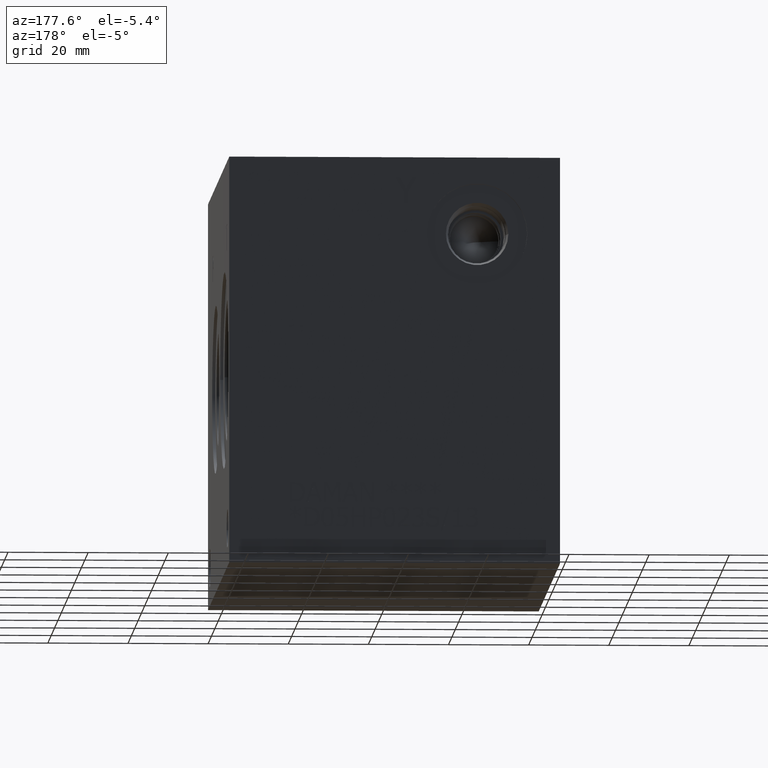
[diagram: clean part render]
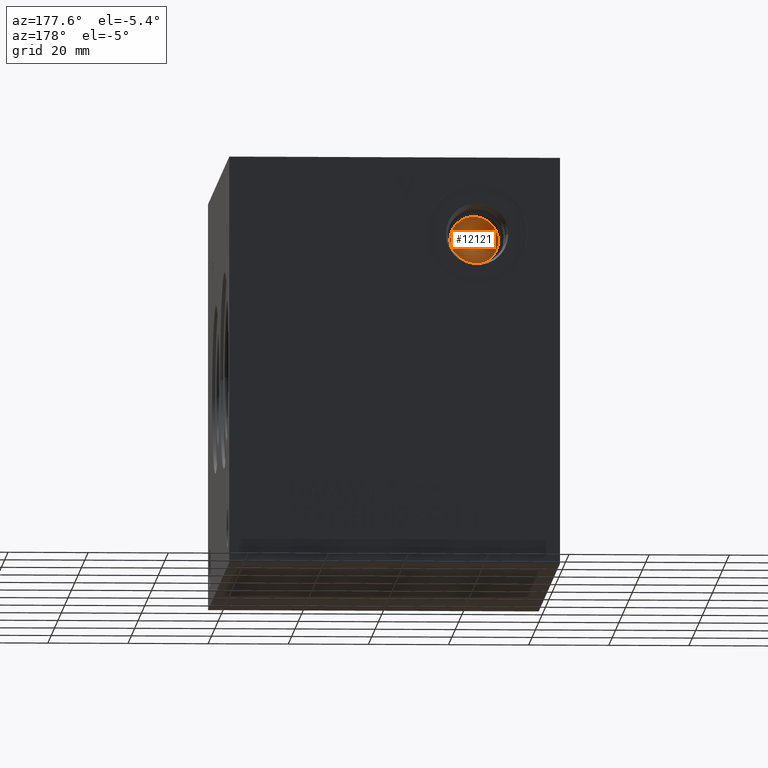
[diagram: same view with one face highlighted and labeled with its STEP entity id]
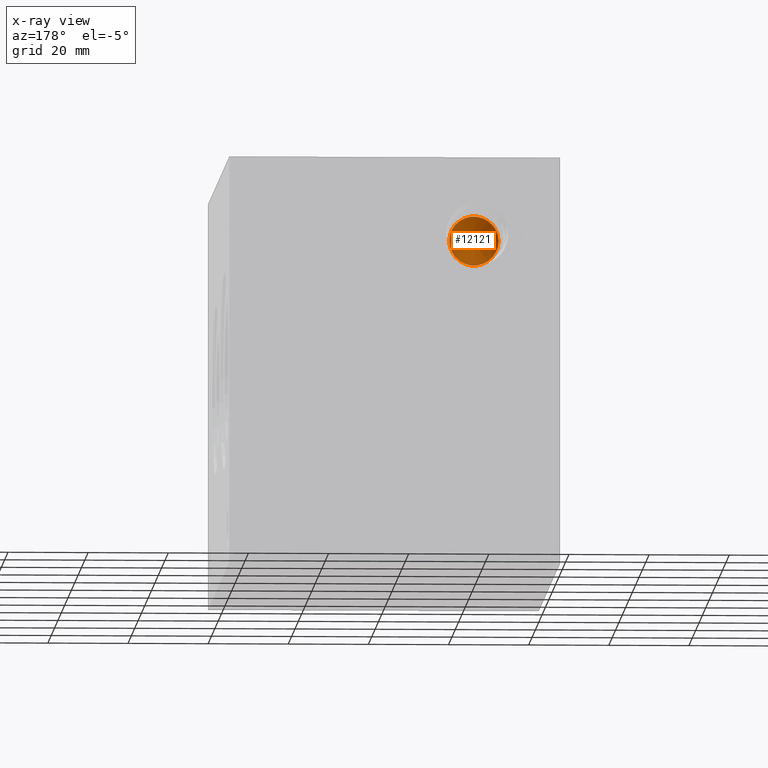
[diagram: x-ray of the same camera — body ghosted, the highlighted face saturated]
A machine part, auxiliary view. The second image highlights one B-rep face of the part: STEP entity #12121.
The next image is the same camera in x-ray: the body ghosted, the highlighted face saturated — about 0% of this face is hidden behind the body in this view.
In plain terms, the highlighted conical surface has half-angle 60 deg.
Its self-contained STEP definition (entity closure, byte-faithful):
#77=CONICAL_SURFACE('',#12630,3.0734,1.0471975511966);
#149=CIRCLE('',#12631,6.1468);
#150=CIRCLE('',#12632,6.1468);
#1409=FACE_OUTER_BOUND('',#2091,.T.);
#2091=EDGE_LOOP('',(#10087,#10088,#10089,#10090));
#3299=LINE('',#20376,#4443);
#4443=VECTOR('',#14732,3.0734);
#5476=VERTEX_POINT('',#20372);
#5477=VERTEX_POINT('',#20373);
#5478=VERTEX_POINT('',#20375);
#7081=EDGE_CURVE('',#5476,#5477,#149,.T.);
#7082=EDGE_CURVE('',#5477,#5478,#3299,.T.);
#7083=EDGE_CURVE('',#5477,#5476,#150,.T.);
#10087=ORIENTED_EDGE('',*,*,#7081,.T.);
#10088=ORIENTED_EDGE('',*,*,#7082,.T.);
#10089=ORIENTED_EDGE('',*,*,#7082,.F.);
#10090=ORIENTED_EDGE('',*,*,#7083,.T.);
#12121=ADVANCED_FACE('',(#1409),#77,.F.);
#12630=AXIS2_PLACEMENT_3D('',#20371,#14728,#14729);
#12631=AXIS2_PLACEMENT_3D('',#20374,#14730,#14731);
#12632=AXIS2_PLACEMENT_3D('',#20377,#14733,#14734);
#14728=DIRECTION('center_axis',(0.,1.,0.));
#14729=DIRECTION('ref_axis',(1.,0.,0.));
#14730=DIRECTION('center_axis',(0.,1.,0.));
#14731=DIRECTION('ref_axis',(1.,0.,0.));
#14732=DIRECTION('',(0.866025403784438,-0.5,-1.06057523872491E-16));
#14733=DIRECTION('center_axis',(0.,1.,0.));
#14734=DIRECTION('ref_axis',(1.,0.,0.));
#20371=CARTESIAN_POINT('Origin',(20.6629,105.260321682673,82.55));
#20372=CARTESIAN_POINT('',(26.8097,107.03475,82.55));
#20373=CARTESIAN_POINT('',(14.5161,107.03475,82.55));
#20374=CARTESIAN_POINT('Origin',(20.6629,107.03475,82.55));
#20375=CARTESIAN_POINT('',(20.6629,103.485893365345,82.55));
#20376=CARTESIAN_POINT('',(17.5895,105.260321682673,82.55));
#20377=CARTESIAN_POINT('Origin',(20.6629,107.03475,82.55));